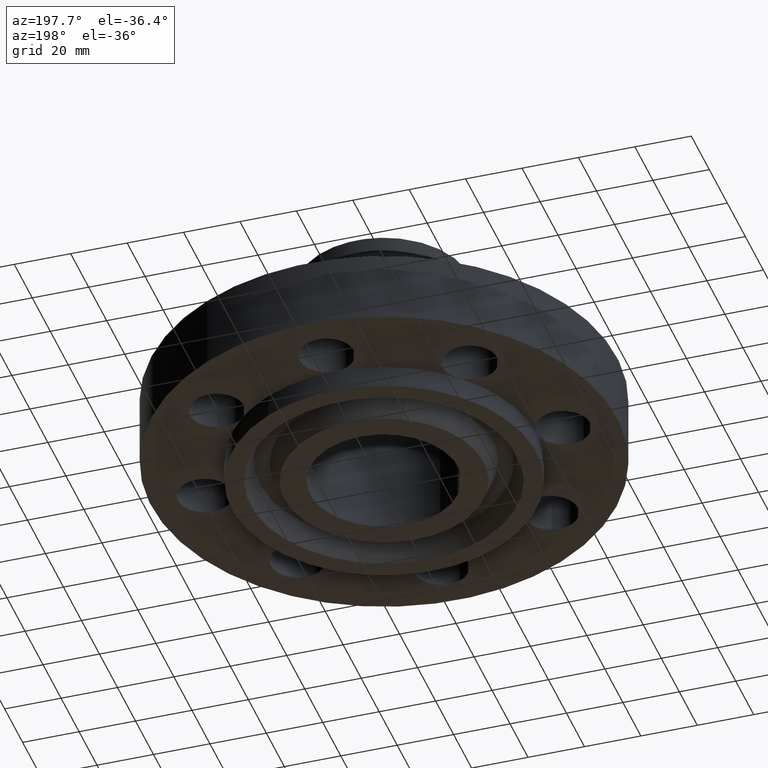
[diagram: clean part render]
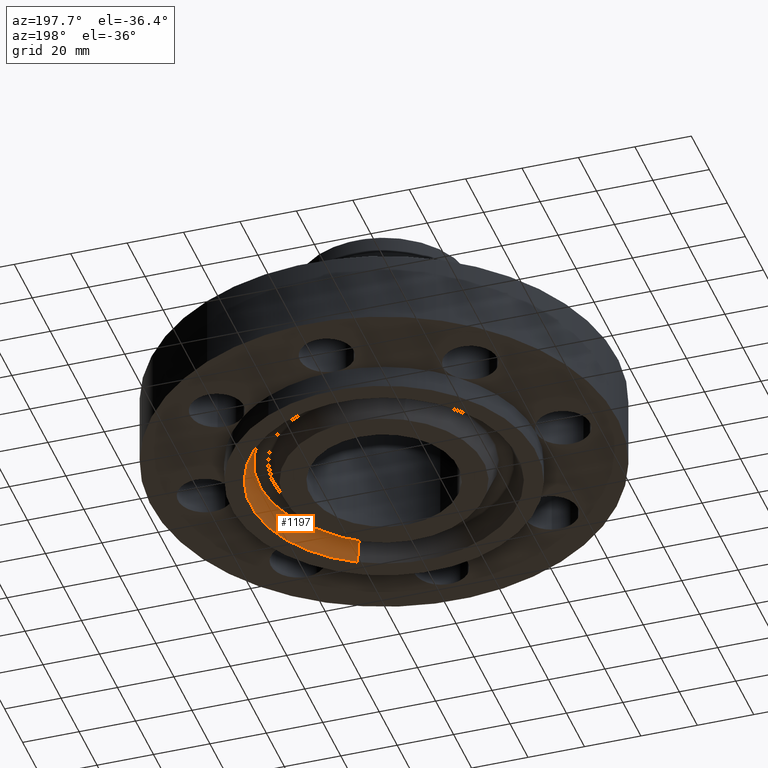
[diagram: same view with one face highlighted and labeled with its STEP entity id]
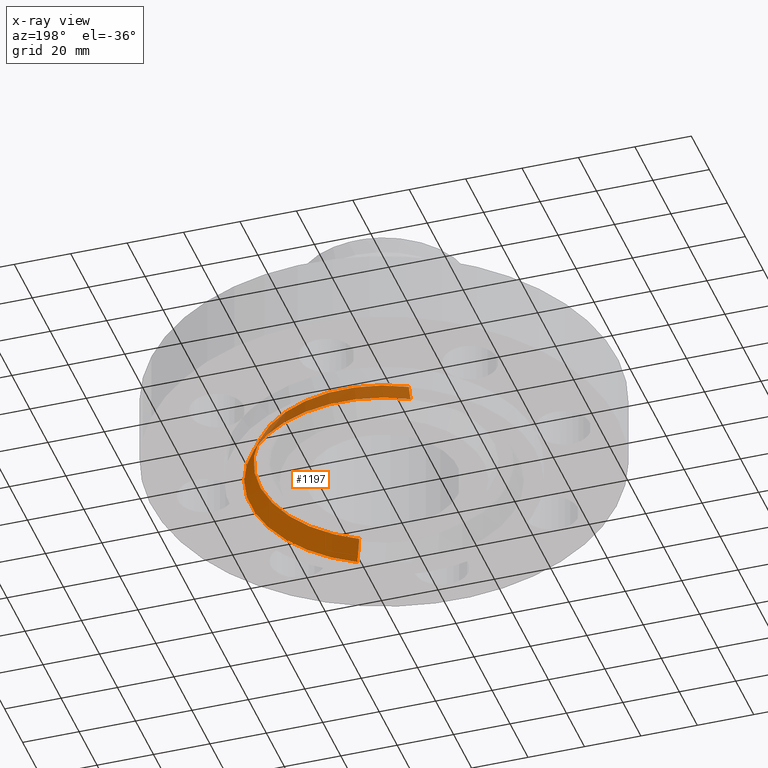
[diagram: x-ray of the same camera — body ghosted, the highlighted face saturated]
A machine part, auxiliary view. The second image highlights one B-rep face of the part: STEP entity #1197.
The next image is the same camera in x-ray: the body ghosted, the highlighted face saturated — about 0% of this face is hidden behind the body in this view.
In plain terms, the highlighted conical surface has half-angle 23 deg.
Its self-contained STEP definition (entity closure, byte-faithful):
#1058=AXIS2_PLACEMENT_3D('Circle Axis2P3D',#1056,#1057,$) ;
#1132=AXIS2_PLACEMENT_3D('Cone Axis2P3D',#1129,#1130,#1131) ;
#1153=AXIS2_PLACEMENT_3D('Circle Axis2P3D',#1151,#1152,$) ;
#1051=CARTESIAN_POINT('Vertex',(0.891491789038,-1.63186477384,-0.313000000001)) ;
#1053=CARTESIAN_POINT('Vertex',(-0.891491789038,1.63186477384,-0.313000000001)) ;
#1056=CARTESIAN_POINT('Axis2P3D Location',(-2.09805925913E-016,-5.59482469102E-016,-0.313000000001)) ;
#1098=CARTESIAN_POINT('Vertex',(-0.831638665444,1.522304366,-0.0188873350169)) ;
#1100=CARTESIAN_POINT('Vertex',(0.831638665444,-1.522304366,-0.0188873350169)) ;
#1129=CARTESIAN_POINT('Axis2P3D Location',(0.,0.,-0.0188873350169)) ;
#1134=CARTESIAN_POINT('Line Origine',(-0.861565227241,1.57708456992,-0.165943667509)) ;
#1139=CARTESIAN_POINT('Line Origine',(0.861565227241,-1.57708456992,-0.165943667509)) ;
#1151=CARTESIAN_POINT('Axis2P3D Location',(0.,0.,-0.0188873350169)) ;
#1057=DIRECTION('Axis2P3D Direction',(0.,0.,-0.0393700787402)) ;
#1130=DIRECTION('Axis2P3D Direction',(-0.,-0.,-0.0393700787402)) ;
#1131=DIRECTION('Axis2P3D XDirection',(-0.0188750212049,0.0345504945626,0.)) ;
#1135=DIRECTION('Vector Direction',(-0.00737505833565,0.0134999537303,-0.0362403485611)) ;
#1140=DIRECTION('Vector Direction',(0.00737505833565,-0.0134999537303,-0.0362403485611)) ;
#1152=DIRECTION('Axis2P3D Direction',(0.,0.,0.0393700787402)) ;
#1136=VECTOR('Line Direction',#1135,0.0393700787402) ;
#1141=VECTOR('Line Direction',#1140,0.0393700787402) ;
#1192=ORIENTED_EDGE('',*,*,#1060,.T.) ;
#1193=ORIENTED_EDGE('',*,*,#1143,.T.) ;
#1194=ORIENTED_EDGE('',*,*,#1155,.T.) ;
#1195=ORIENTED_EDGE('',*,*,#1138,.F.) ;
#1197=ADVANCED_FACE('PartBody',(#1196),#1133,.F.) ;
#1059=CIRCLE('generated circle',#1058,1.85950000001) ;
#1154=CIRCLE('generated circle',#1153,1.73465658059) ;
#1133=CONICAL_SURFACE('Cone',#1132,1.73465658059,0.401425727959) ;
#1060=EDGE_CURVE('',#1054,#1052,#1059,.T.) ;
#1138=EDGE_CURVE('',#1054,#1099,#1137,.F.) ;
#1143=EDGE_CURVE('',#1052,#1101,#1142,.F.) ;
#1155=EDGE_CURVE('',#1101,#1099,#1154,.T.) ;
#1191=EDGE_LOOP('',(#1192,#1193,#1194,#1195)) ;
#1196=FACE_OUTER_BOUND('',#1191,.T.) ;
#1137=LINE('Line',#1134,#1136) ;
#1142=LINE('Line',#1139,#1141) ;
#1052=VERTEX_POINT('',#1051) ;
#1054=VERTEX_POINT('',#1053) ;
#1099=VERTEX_POINT('',#1098) ;
#1101=VERTEX_POINT('',#1100) ;